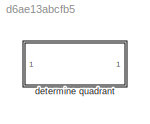
MODEL slx_d6ae13abcfb5
KIND library
CONFIG AbsTol = auto
CONFIG EnableMultiTasking = off
CONFIG FixedStep = auto
CONFIG MaxStep = auto
CONFIG MinStep = auto
CONFIG RelTol = 1e-3
CONFIG SampleTimeConstraint = Unconstrained
CONFIG SolverName = VariableStepAuto
CONFIG StartTime = 0.0
CONFIG StopTime = 10.0
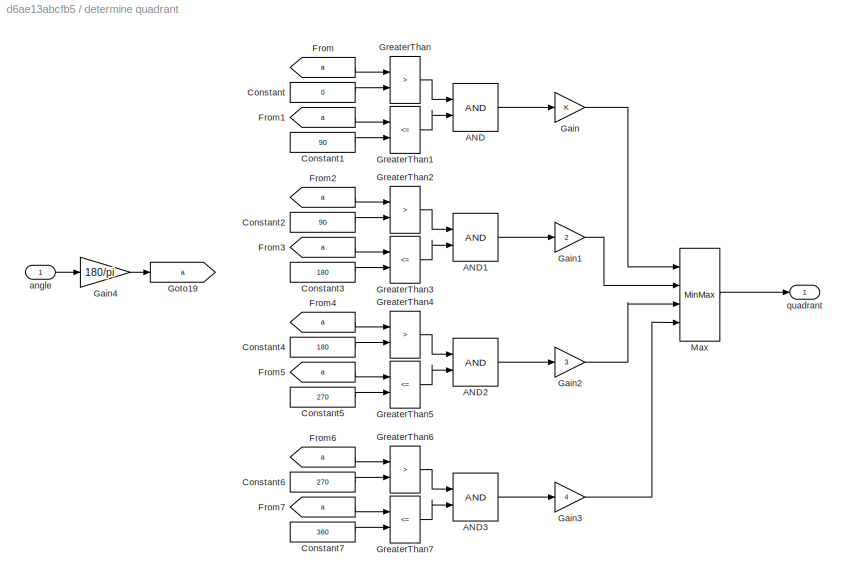
BLOCK [SubSystem] determine quadrant
  Ports = [1, 1]
  RequestExecContextInheritance = off
BLOCK [Logic] determine quadrant/AND
  AllPortsSameDT = off
  IconShape = distinctive
  OutDataTypeStr = boolean
  Ports = [2, 1]
BLOCK [Logic] determine quadrant/AND1
  AllPortsSameDT = off
  IconShape = distinctive
  OutDataTypeStr = boolean
  Ports = [2, 1]
BLOCK [Logic] determine quadrant/AND2
  AllPortsSameDT = off
  IconShape = distinctive
  OutDataTypeStr = boolean
  Ports = [2, 1]
BLOCK [Logic] determine quadrant/AND3
  AllPortsSameDT = off
  IconShape = distinctive
  OutDataTypeStr = boolean
  Ports = [2, 1]
BLOCK [Constant] determine quadrant/Constant
  Value = 0
BLOCK [Constant] determine quadrant/Constant1
  Value = 90
BLOCK [Constant] determine quadrant/Constant2
  Value = 90
BLOCK [Constant] determine quadrant/Constant3
  Value = 180
BLOCK [Constant] determine quadrant/Constant4
  Value = 180
BLOCK [Constant] determine quadrant/Constant5
  Value = 270
BLOCK [Constant] determine quadrant/Constant6
  Value = 270
BLOCK [Constant] determine quadrant/Constant7
  Value = 360
BLOCK [From] determine quadrant/From
  GotoTag = a
BLOCK [From] determine quadrant/From1
  GotoTag = a
BLOCK [From] determine quadrant/From2
  GotoTag = a
BLOCK [From] determine quadrant/From3
  GotoTag = a
BLOCK [From] determine quadrant/From4
  GotoTag = a
BLOCK [From] determine quadrant/From5
  GotoTag = a
BLOCK [From] determine quadrant/From6
  GotoTag = a
BLOCK [From] determine quadrant/From7
  GotoTag = a
BLOCK [Gain] determine quadrant/Gain
BLOCK [Gain] determine quadrant/Gain1
  Gain = 2
BLOCK [Gain] determine quadrant/Gain2
  Gain = 3
BLOCK [Gain] determine quadrant/Gain3
  Gain = 4
BLOCK [Gain] determine quadrant/Gain4
  Gain = 180/pi
BLOCK [Goto] determine quadrant/Goto19
  GotoTag = a
BLOCK [RelationalOperator] determine quadrant/GreaterThan
  InputSameDT = off
  Operator = >
  OutDataTypeStr = boolean
  Ports = [2, 1]
  RndMeth = Simplest
BLOCK [RelationalOperator] determine quadrant/GreaterThan1
  InputSameDT = off
  Operator = <=
  OutDataTypeStr = boolean
  Ports = [2, 1]
  RndMeth = Simplest
BLOCK [RelationalOperator] determine quadrant/GreaterThan2
  InputSameDT = off
  Operator = >
  OutDataTypeStr = boolean
  Ports = [2, 1]
  RndMeth = Simplest
BLOCK [RelationalOperator] determine quadrant/GreaterThan3
  InputSameDT = off
  Operator = <=
  OutDataTypeStr = boolean
  Ports = [2, 1]
  RndMeth = Simplest
BLOCK [RelationalOperator] determine quadrant/GreaterThan4
  InputSameDT = off
  Operator = >
  OutDataTypeStr = boolean
  Ports = [2, 1]
  RndMeth = Simplest
BLOCK [RelationalOperator] determine quadrant/GreaterThan5
  InputSameDT = off
  Operator = <=
  OutDataTypeStr = boolean
  Ports = [2, 1]
  RndMeth = Simplest
BLOCK [RelationalOperator] determine quadrant/GreaterThan6
  InputSameDT = off
  Operator = >
  OutDataTypeStr = boolean
  Ports = [2, 1]
  RndMeth = Simplest
BLOCK [RelationalOperator] determine quadrant/GreaterThan7
  InputSameDT = off
  Operator = <=
  OutDataTypeStr = boolean
  Ports = [2, 1]
  RndMeth = Simplest
BLOCK [MinMax] determine quadrant/Max
  Function = max
  Inputs = 4
  Ports = [4, 1]
BLOCK [Inport] determine quadrant/angle
BLOCK [Outport] determine quadrant/quadrant
LINE determine quadrant/AND1:1 -> determine quadrant/Gain1:1
LINE determine quadrant/AND2:1 -> determine quadrant/Gain2:1
LINE determine quadrant/AND3:1 -> determine quadrant/Gain3:1
LINE determine quadrant/AND:1 -> determine quadrant/Gain:1
LINE determine quadrant/Constant1:1 -> determine quadrant/GreaterThan1:2
LINE determine quadrant/Constant2:1 -> determine quadrant/GreaterThan2:2
LINE determine quadrant/Constant3:1 -> determine quadrant/GreaterThan3:2
LINE determine quadrant/Constant4:1 -> determine quadrant/GreaterThan4:2
LINE determine quadrant/Constant5:1 -> determine quadrant/GreaterThan5:2
LINE determine quadrant/Constant6:1 -> determine quadrant/GreaterThan6:2
LINE determine quadrant/Constant7:1 -> determine quadrant/GreaterThan7:2
LINE determine quadrant/Constant:1 -> determine quadrant/GreaterThan:2
LINE determine quadrant/From1:1 -> determine quadrant/GreaterThan1:1
LINE determine quadrant/From2:1 -> determine quadrant/GreaterThan2:1
LINE determine quadrant/From3:1 -> determine quadrant/GreaterThan3:1
LINE determine quadrant/From4:1 -> determine quadrant/GreaterThan4:1
LINE determine quadrant/From5:1 -> determine quadrant/GreaterThan5:1
LINE determine quadrant/From6:1 -> determine quadrant/GreaterThan6:1
LINE determine quadrant/From7:1 -> determine quadrant/GreaterThan7:1
LINE determine quadrant/From:1 -> determine quadrant/GreaterThan:1
LINE determine quadrant/Gain1:1 -> determine quadrant/Max:2
LINE determine quadrant/Gain2:1 -> determine quadrant/Max:3
LINE determine quadrant/Gain3:1 -> determine quadrant/Max:4
LINE determine quadrant/Gain4:1 -> determine quadrant/Goto19:1
LINE determine quadrant/Gain:1 -> determine quadrant/Max:1
LINE determine quadrant/GreaterThan1:1 -> determine quadrant/AND:2
LINE determine quadrant/GreaterThan2:1 -> determine quadrant/AND1:1
LINE determine quadrant/GreaterThan3:1 -> determine quadrant/AND1:2
LINE determine quadrant/GreaterThan4:1 -> determine quadrant/AND2:1
LINE determine quadrant/GreaterThan5:1 -> determine quadrant/AND2:2
LINE determine quadrant/GreaterThan6:1 -> determine quadrant/AND3:1
LINE determine quadrant/GreaterThan7:1 -> determine quadrant/AND3:2
LINE determine quadrant/GreaterThan:1 -> determine quadrant/AND:1
LINE determine quadrant/Max:1 -> determine quadrant/quadrant:1
LINE determine quadrant/angle:1 -> determine quadrant/Gain4:1
